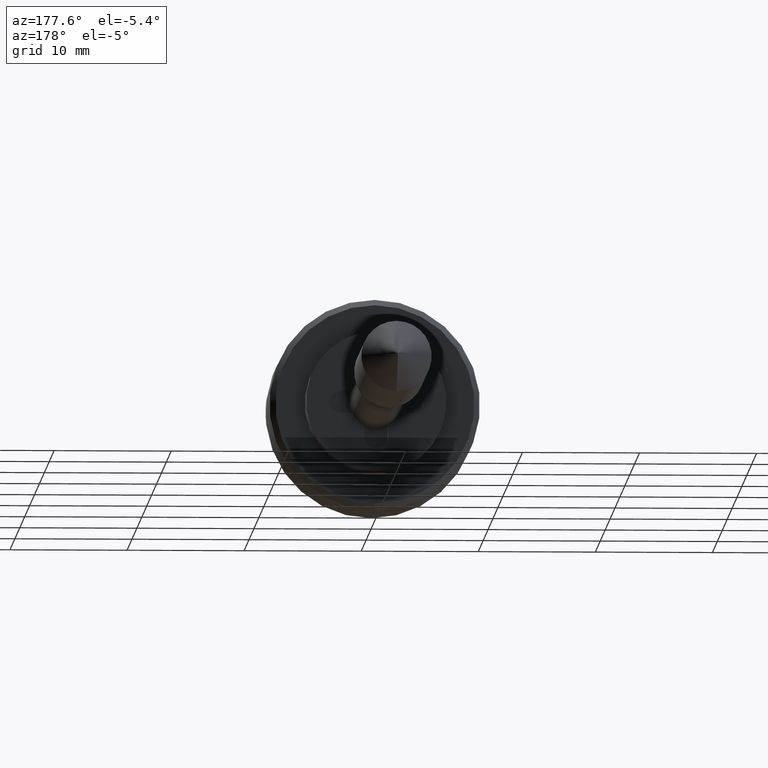
[diagram: clean part render]
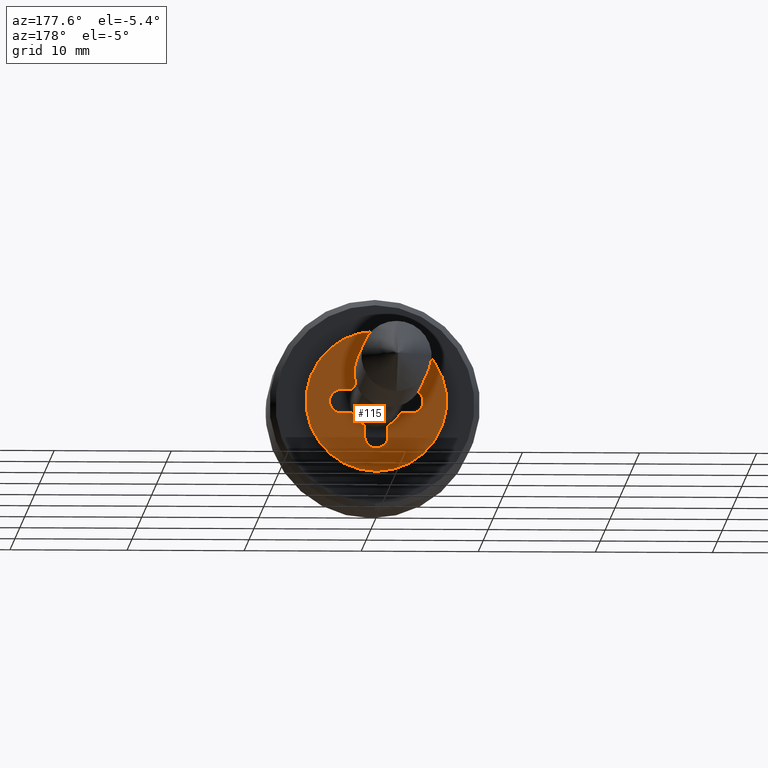
[diagram: same view with one face highlighted and labeled with its STEP entity id]
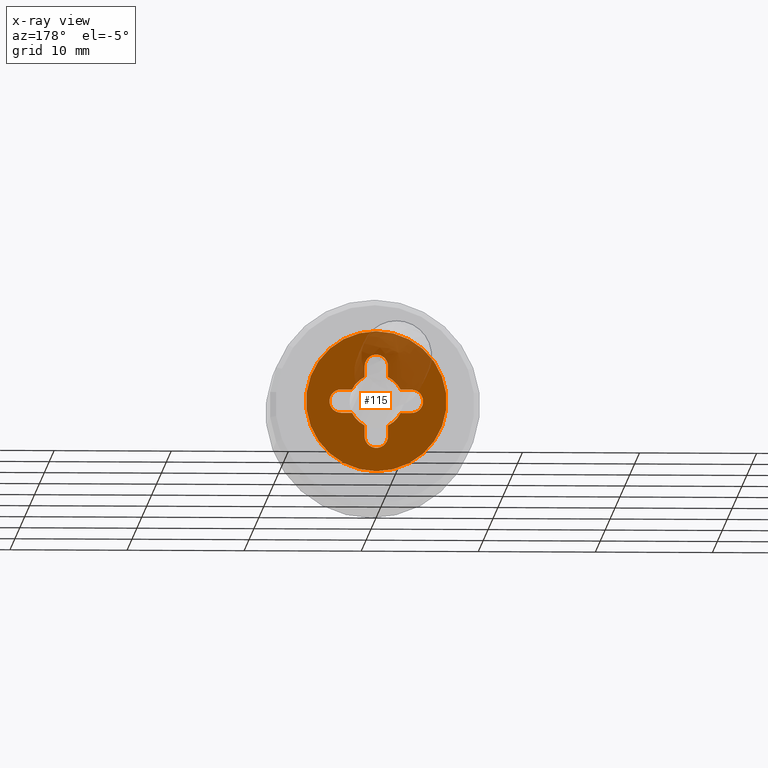
[diagram: x-ray of the same camera — body ghosted, the highlighted face saturated]
A machine part, auxiliary view. The second image highlights one B-rep face of the part: STEP entity #115.
The next image is the same camera in x-ray: the body ghosted, the highlighted face saturated — about 24% of this face is hidden behind the body in this view.
In plain terms, the highlighted planar face has unit normal (0, 1, 0).
Its self-contained STEP definition (entity closure, byte-faithful):
#115=ADVANCED_FACE('',(#185,#186),#184,.T.);
#184=PLANE('',#597);
#185=FACE_OUTER_BOUND('',#598,.T.);
#186=FACE_BOUND('',#599,.T.);
#594=CARTESIAN_POINT('',(-1.24707658145E+01,8.00000000000E-01,7.80000000000E+00));
#595=DIRECTION('',(-0.00000000000E+00,1.00000000000E+00,0.00000000000E+00));
#596=DIRECTION('',(1.00000000000E+00,0.00000000000E+00,0.00000000000E+00));
#597=AXIS2_PLACEMENT_3D('',#594,#595,#596);
#598=EDGE_LOOP('',(#842,#843));
#599=EDGE_LOOP('',(#844,#845,#846,#847,#848,#849,#850,#851,#852,#853,#854,#855,#856,#857,#858,#859));
#842=ORIENTED_EDGE('',*,*,#1040,.F.);
#843=ORIENTED_EDGE('',*,*,#1041,.F.);
#844=ORIENTED_EDGE('',*,*,#1042,.T.);
#845=ORIENTED_EDGE('',*,*,#1043,.T.);
#846=ORIENTED_EDGE('',*,*,#1044,.T.);
#847=ORIENTED_EDGE('',*,*,#1045,.T.);
#848=ORIENTED_EDGE('',*,*,#1046,.T.);
#849=ORIENTED_EDGE('',*,*,#1047,.T.);
#850=ORIENTED_EDGE('',*,*,#1048,.T.);
#851=ORIENTED_EDGE('',*,*,#1038,.T.);
#852=ORIENTED_EDGE('',*,*,#1032,.T.);
#853=ORIENTED_EDGE('',*,*,#1036,.T.);
#854=ORIENTED_EDGE('',*,*,#1049,.T.);
#855=ORIENTED_EDGE('',*,*,#1050,.T.);
#856=ORIENTED_EDGE('',*,*,#1051,.T.);
#857=ORIENTED_EDGE('',*,*,#1052,.T.);
#858=ORIENTED_EDGE('',*,*,#1053,.T.);
#859=ORIENTED_EDGE('',*,*,#1054,.T.);
#1032=EDGE_CURVE('',#1145,#1138,#1146,.T.);
#1036=EDGE_CURVE('',#1138,#1165,#1172,.T.);
#1038=EDGE_CURVE('',#1185,#1145,#1186,.T.);
#1040=EDGE_CURVE('',#1198,#1199,#1200,.T.);
#1041=EDGE_CURVE('',#1199,#1198,#1206,.T.);
#1042=EDGE_CURVE('',#1212,#1213,#1214,.T.);
#1043=EDGE_CURVE('',#1213,#1220,#1221,.T.);
#1044=EDGE_CURVE('',#1220,#1227,#1228,.T.);
#1045=EDGE_CURVE('',#1227,#1234,#1235,.T.);
#1046=EDGE_CURVE('',#1234,#1241,#1242,.T.);
#1047=EDGE_CURVE('',#1241,#1248,#1249,.T.);
#1048=EDGE_CURVE('',#1248,#1185,#1255,.T.);
#1049=EDGE_CURVE('',#1165,#1261,#1262,.T.);
#1050=EDGE_CURVE('',#1261,#1268,#1269,.T.);
#1051=EDGE_CURVE('',#1268,#1275,#1276,.T.);
#1052=EDGE_CURVE('',#1275,#1282,#1283,.T.);
#1053=EDGE_CURVE('',#1282,#1289,#1290,.T.);
#1054=EDGE_CURVE('',#1289,#1212,#1296,.T.);
#1138=VERTEX_POINT('',#1801);
#1145=VERTEX_POINT('',#1805);
#1146=CIRCLE('',#1809,1.00000000000E+00);
#1165=VERTEX_POINT('',#1817);
#1172=LINE('',#1821,#1822);
#1185=VERTEX_POINT('',#1828);
#1186=LINE('',#1829,#1830);
#1198=VERTEX_POINT('',#1835);
#1199=VERTEX_POINT('',#1836);
#1200=CIRCLE('',#1840,6.00000000000E+00);
#1206=CIRCLE('',#1844,6.00000000000E+00);
#1212=VERTEX_POINT('',#1845);
#1213=VERTEX_POINT('',#1846);
#1214=CIRCLE('',#1850,1.00000000000E+00);
#1220=VERTEX_POINT('',#1851);
#1221=LINE('',#1852,#1853);
#1227=VERTEX_POINT('',#1855);
#1228=CIRCLE('',#1859,2.30000000000E+00);
#1234=VERTEX_POINT('',#1860);
#1235=LINE('',#1861,#1862);
#1241=VERTEX_POINT('',#1864);
#1242=CIRCLE('',#1868,1.00000000000E+00);
#1248=VERTEX_POINT('',#1869);
#1249=LINE('',#1870,#1871);
#1255=CIRCLE('',#1876,2.30000000000E+00);
#1261=VERTEX_POINT('',#1877);
#1262=CIRCLE('',#1881,2.30000000000E+00);
#1268=VERTEX_POINT('',#1882);
#1269=LINE('',#1883,#1884);
#1275=VERTEX_POINT('',#1886);
#1276=CIRCLE('',#1890,1.00000000000E+00);
#1282=VERTEX_POINT('',#1891);
#1283=LINE('',#1892,#1893);
#1289=VERTEX_POINT('',#1895);
#1290=CIRCLE('',#1899,2.30000000000E+00);
#1296=LINE('',#1900,#1901);
#1801=CARTESIAN_POINT('',(-3.00000000000E+00,8.00000000000E-01,-1.00000000000E+00));
#1805=CARTESIAN_POINT('',(-3.00000000000E+00,8.00000000000E-01,1.00000000000E+00));
#1806=CARTESIAN_POINT('',(-3.00000000000E+00,8.00000000000E-01,0.00000000000E+00));
#1807=DIRECTION('',(0.00000000000E+00,-1.00000000000E+00,0.00000000000E+00));
#1808=DIRECTION('',(-0.00000000000E+00,-0.00000000000E+00,-1.00000000000E+00));
#1809=AXIS2_PLACEMENT_3D('',#1806,#1807,#1808);
#1817=CARTESIAN_POINT('',(-2.07123151772E+00,8.00000000000E-01,-1.00000000000E+00));
#1821=CARTESIAN_POINT('',(-3.00000000000E+00,8.00000000000E-01,-1.00000000000E+00));
#1822=VECTOR('',#1823,9.28768482279E-01);
#1823=DIRECTION('',(1.00000000000E+00,0.00000000000E+00,0.00000000000E+00));
#1828=CARTESIAN_POINT('',(-2.07123151772E+00,8.00000000000E-01,1.00000000000E+00));
#1829=CARTESIAN_POINT('',(-2.07123151772E+00,8.00000000000E-01,1.00000000000E+00));
#1830=VECTOR('',#1831,9.28768482279E-01);
#1831=DIRECTION('',(-1.00000000000E+00,0.00000000000E+00,0.00000000000E+00));
#1835=CARTESIAN_POINT('',(1.18423789293E-15,8.00000000000E-01,-6.00000000000E+00));
#1836=CARTESIAN_POINT('',(0.00000000000E+00,8.00000000000E-01,6.00000000000E+00));
#1837=CARTESIAN_POINT('',(0.00000000000E+00,8.00000000000E-01,0.00000000000E+00));
#1838=DIRECTION('',(-0.00000000000E+00,-1.00000000000E+00,0.00000000000E+00));
#1839=DIRECTION('',(-1.22460635382E-16,0.00000000000E+00,1.00000000000E+00));
#1840=AXIS2_PLACEMENT_3D('',#1837,#1838,#1839);
#1841=CARTESIAN_POINT('',(0.00000000000E+00,8.00000000000E-01,0.00000000000E+00));
#1842=DIRECTION('',(-0.00000000000E+00,-1.00000000000E+00,0.00000000000E+00));
#1843=DIRECTION('',(-1.22460635382E-16,0.00000000000E+00,1.00000000000E+00));
#1844=AXIS2_PLACEMENT_3D('',#1841,#1842,#1843);
#1845=CARTESIAN_POINT('',(3.00000000000E+00,8.00000000000E-01,-1.00000000000E+00));
#1846=CARTESIAN_POINT('',(3.00000000000E+00,8.00000000000E-01,1.00000000000E+00));
#1847=CARTESIAN_POINT('',(3.00000000000E+00,8.00000000000E-01,0.00000000000E+00));
#1848=DIRECTION('',(0.00000000000E+00,-1.00000000000E+00,0.00000000000E+00));
#1849=DIRECTION('',(-0.00000000000E+00,-0.00000000000E+00,-1.00000000000E+00));
#1850=AXIS2_PLACEMENT_3D('',#1847,#1848,#1849);
#1851=CARTESIAN_POINT('',(2.07123151772E+00,8.00000000000E-01,1.00000000000E+00));
#1852=CARTESIAN_POINT('',(3.00000000000E+00,8.00000000000E-01,1.00000000000E+00));
#1853=VECTOR('',#1854,9.28768482279E-01);
#1854=DIRECTION('',(-1.00000000000E+00,0.00000000000E+00,0.00000000000E+00));
#1855=CARTESIAN_POINT('',(1.00000000000E+00,8.00000000000E-01,2.07123151772E+00));
#1856=CARTESIAN_POINT('',(0.00000000000E+00,8.00000000000E-01,0.00000000000E+00));
#1857=DIRECTION('',(0.00000000000E+00,-1.00000000000E+00,0.00000000000E+00));
#1858=DIRECTION('',(-0.00000000000E+00,-0.00000000000E+00,-1.00000000000E+00));
#1859=AXIS2_PLACEMENT_3D('',#1856,#1857,#1858);
#1860=CARTESIAN_POINT('',(1.00000000000E+00,8.00000000000E-01,3.00000000000E+00));
#1861=CARTESIAN_POINT('',(1.00000000000E+00,8.00000000000E-01,2.07123151772E+00));
#1862=VECTOR('',#1863,9.28768482279E-01);
#1863=DIRECTION('',(0.00000000000E+00,0.00000000000E+00,1.00000000000E+00));
#1864=CARTESIAN_POINT('',(-1.00000000000E+00,8.00000000000E-01,3.00000000000E+00));
#1865=CARTESIAN_POINT('',(0.00000000000E+00,8.00000000000E-01,3.00000000000E+00));
#1866=DIRECTION('',(0.00000000000E+00,-1.00000000000E+00,0.00000000000E+00));
#1867=DIRECTION('',(-0.00000000000E+00,-0.00000000000E+00,-1.00000000000E+00));
#1868=AXIS2_PLACEMENT_3D('',#1865,#1866,#1867);
#1869=CARTESIAN_POINT('',(-1.00000000000E+00,8.00000000000E-01,2.07123151772E+00));
#1870=CARTESIAN_POINT('',(-1.00000000000E+00,8.00000000000E-01,3.00000000000E+00));
#1871=VECTOR('',#1872,9.28768482279E-01);
#1872=DIRECTION('',(0.00000000000E+00,0.00000000000E+00,-1.00000000000E+00));
#1873=CARTESIAN_POINT('',(0.00000000000E+00,8.00000000000E-01,0.00000000000E+00));
#1874=DIRECTION('',(0.00000000000E+00,-1.00000000000E+00,0.00000000000E+00));
#1875=DIRECTION('',(-0.00000000000E+00,-0.00000000000E+00,-1.00000000000E+00));
#1876=AXIS2_PLACEMENT_3D('',#1873,#1874,#1875);
#1877=CARTESIAN_POINT('',(-1.00000000000E+00,8.00000000000E-01,-2.07123151772E+00));
#1878=CARTESIAN_POINT('',(0.00000000000E+00,8.00000000000E-01,0.00000000000E+00));
#1879=DIRECTION('',(0.00000000000E+00,-1.00000000000E+00,0.00000000000E+00));
#1880=DIRECTION('',(-0.00000000000E+00,-0.00000000000E+00,-1.00000000000E+00));
#1881=AXIS2_PLACEMENT_3D('',#1878,#1879,#1880);
#1882=CARTESIAN_POINT('',(-1.00000000000E+00,8.00000000000E-01,-3.00000000000E+00));
#1883=CARTESIAN_POINT('',(-1.00000000000E+00,8.00000000000E-01,-2.07123151772E+00));
#1884=VECTOR('',#1885,9.28768482279E-01);
#1885=DIRECTION('',(0.00000000000E+00,0.00000000000E+00,-1.00000000000E+00));
#1886=CARTESIAN_POINT('',(1.00000000000E+00,8.00000000000E-01,-2.99999982547E+00));
#1887=CARTESIAN_POINT('',(0.00000000000E+00,8.00000000000E-01,-3.00000000000E+00));
#1888=DIRECTION('',(0.00000000000E+00,-1.00000000000E+00,0.00000000000E+00));
#1889=DIRECTION('',(1.00000000000E+00,0.00000000000E+00,1.74532925185E-07));
#1890=AXIS2_PLACEMENT_3D('',#1887,#1888,#1889);
#1891=CARTESIAN_POINT('',(1.00000000000E+00,8.00000000000E-01,-2.07123151772E+00));
#1892=CARTESIAN_POINT('',(1.00000000000E+00,8.00000000000E-01,-2.99999982547E+00));
#1893=VECTOR('',#1894,9.28768307746E-01);
#1894=DIRECTION('',(0.00000000000E+00,0.00000000000E+00,1.00000000000E+00));
#1895=CARTESIAN_POINT('',(2.07123151772E+00,8.00000000000E-01,-1.00000000000E+00));
#1896=CARTESIAN_POINT('',(0.00000000000E+00,8.00000000000E-01,0.00000000000E+00));
#1897=DIRECTION('',(0.00000000000E+00,-1.00000000000E+00,0.00000000000E+00));
#1898=DIRECTION('',(-0.00000000000E+00,-0.00000000000E+00,-1.00000000000E+00));
#1899=AXIS2_PLACEMENT_3D('',#1896,#1897,#1898);
#1900=CARTESIAN_POINT('',(2.07123151772E+00,8.00000000000E-01,-1.00000000000E+00));
#1901=VECTOR('',#1902,9.28768482279E-01);
#1902=DIRECTION('',(1.00000000000E+00,0.00000000000E+00,0.00000000000E+00));